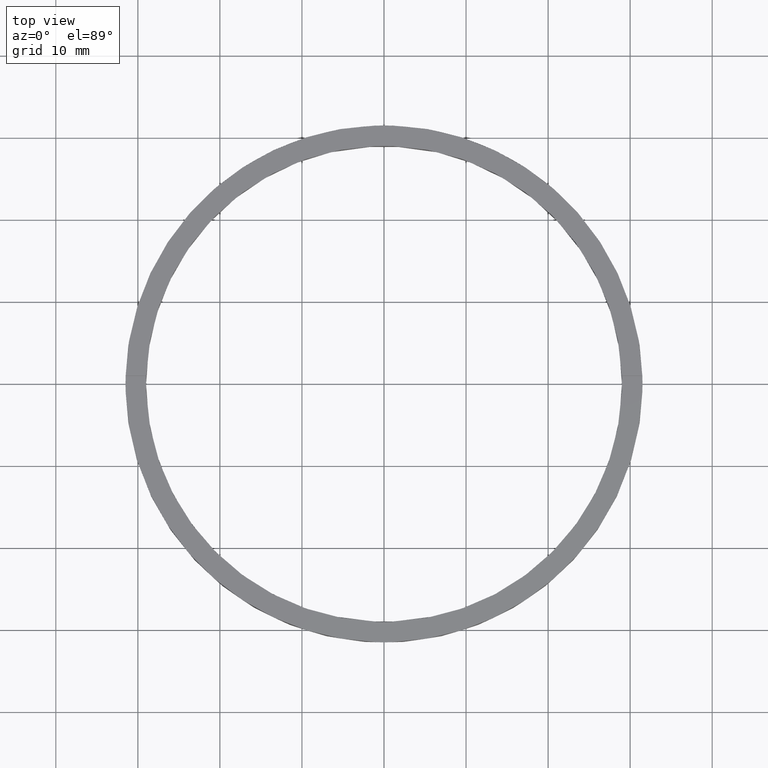
[diagram: clean part render]
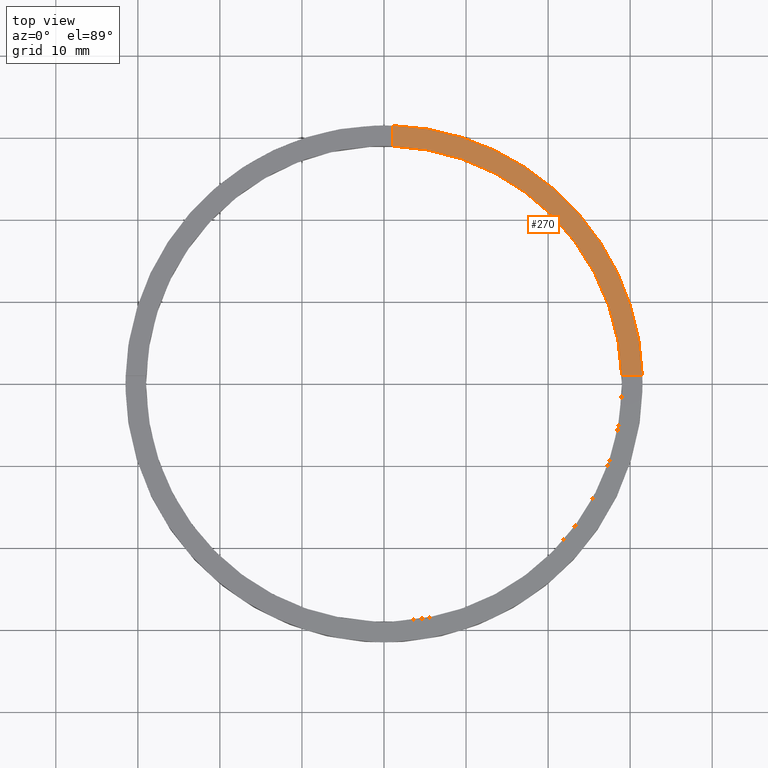
[diagram: same view with one face highlighted and labeled with its STEP entity id]
A machine part, top view. The second image highlights one B-rep face of the part: STEP entity #270.
In plain terms, the highlighted planar face has unit normal (0, 0, 1).
Its self-contained STEP definition (entity closure, byte-faithful):
#29 = VERTEX_POINT ( 'NONE', #71 ) ;
#36 = DIRECTION ( 'NONE',  ( 1.000000000000000000, 0.000000000000000000, 0.000000000000000000 ) ) ;
#47 = CIRCLE ( 'NONE', #144, 29.00000000000000000 ) ;
#53 = AXIS2_PLACEMENT_3D ( 'NONE', #490, #444, #664 ) ;
#54 = EDGE_CURVE ( 'NONE', #29, #451, #160, .T. ) ;
#71 = CARTESIAN_POINT ( 'NONE',  ( 31.48412298286233479, 0.9999999999998414602, 3.000000000000000000 ) ) ;
#101 = CIRCLE ( 'NONE', #421, 31.50000000000000000 ) ;
#116 = EDGE_CURVE ( 'NONE', #559, #261, #448, .T. ) ;
#121 = CARTESIAN_POINT ( 'NONE',  ( 21.49999999999999645, 0.9999999999998409050, 3.000000000000000000 ) ) ;
#144 = AXIS2_PLACEMENT_3D ( 'NONE', #437, #570, #736 ) ;
#160 = LINE ( 'NONE', #121, #434 ) ;
#207 = DIRECTION ( 'NONE',  ( 0.000000000000000000, 0.000000000000000000, 1.000000000000000000 ) ) ;
#217 = ORIENTED_EDGE ( 'NONE', *, *, #116, .F. ) ;
#226 = FACE_OUTER_BOUND ( 'NONE', #522, .T. ) ;
#261 = VERTEX_POINT ( 'NONE', #452 ) ;
#270 = ADVANCED_FACE ( 'NONE', ( #226 ), #519, .T. ) ;
#276 = CARTESIAN_POINT ( 'NONE',  ( 0.9999999999999754641, 21.50000000000000000, 3.000000000000000000 ) ) ;
#322 = DIRECTION ( 'NONE',  ( 0.000000000000000000, 1.000000000000000000, 0.000000000000000000 ) ) ;
#340 = EDGE_CURVE ( 'NONE', #451, #559, #47, .T. ) ;
#351 = CARTESIAN_POINT ( 'NONE',  ( 28.98275349237888321, 0.9999999999998414602, 3.000000000000000000 ) ) ;
#372 = DIRECTION ( 'NONE',  ( -1.000000000000000000, -6.505213034913022906E-17, -0.000000000000000000 ) ) ;
#421 = AXIS2_PLACEMENT_3D ( 'NONE', #745, #207, #36 ) ;
#432 = VECTOR ( 'NONE', #322, 1000.000000000000000 ) ;
#434 = VECTOR ( 'NONE', #372, 1000.000000000000000 ) ;
#437 = CARTESIAN_POINT ( 'NONE',  ( 0.000000000000000000, 0.000000000000000000, 3.000000000000000000 ) ) ;
#444 = DIRECTION ( 'NONE',  ( 0.000000000000000000, 0.000000000000000000, 1.000000000000000000 ) ) ;
#448 = LINE ( 'NONE', #276, #432 ) ;
#451 = VERTEX_POINT ( 'NONE', #351 ) ;
#452 = CARTESIAN_POINT ( 'NONE',  ( 0.9999999999999754641, 31.48412298286233124, 3.000000000000000000 ) ) ;
#460 = ORIENTED_EDGE ( 'NONE', *, *, #54, .F. ) ;
#484 = ORIENTED_EDGE ( 'NONE', *, *, #615, .T. ) ;
#490 = CARTESIAN_POINT ( 'NONE',  ( 0.000000000000000000, 0.000000000000000000, 3.000000000000000000 ) ) ;
#519 = PLANE ( 'NONE',  #53 ) ;
#522 = EDGE_LOOP ( 'NONE', ( #217, #721, #460, #484 ) ) ;
#559 = VERTEX_POINT ( 'NONE', #582 ) ;
#570 = DIRECTION ( 'NONE',  ( 0.000000000000000000, 0.000000000000000000, 1.000000000000000000 ) ) ;
#582 = CARTESIAN_POINT ( 'NONE',  ( 0.9999999999999754641, 28.98275349237887966, 3.000000000000000000 ) ) ;
#615 = EDGE_CURVE ( 'NONE', #29, #261, #101, .T. ) ;
#664 = DIRECTION ( 'NONE',  ( 1.000000000000000000, 0.000000000000000000, -0.000000000000000000 ) ) ;
#721 = ORIENTED_EDGE ( 'NONE', *, *, #340, .F. ) ;
#736 = DIRECTION ( 'NONE',  ( 1.000000000000000000, 0.000000000000000000, 0.000000000000000000 ) ) ;
#745 = CARTESIAN_POINT ( 'NONE',  ( 0.000000000000000000, 0.000000000000000000, 3.000000000000000000 ) ) ;